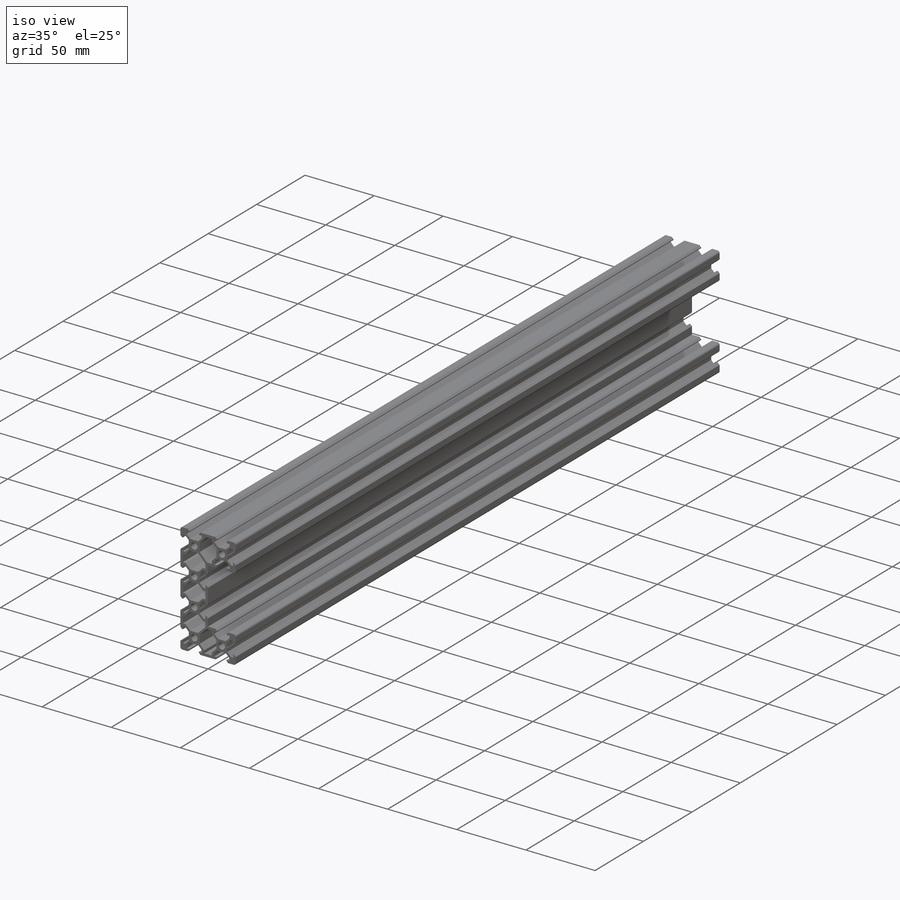
[diagram: iso view]
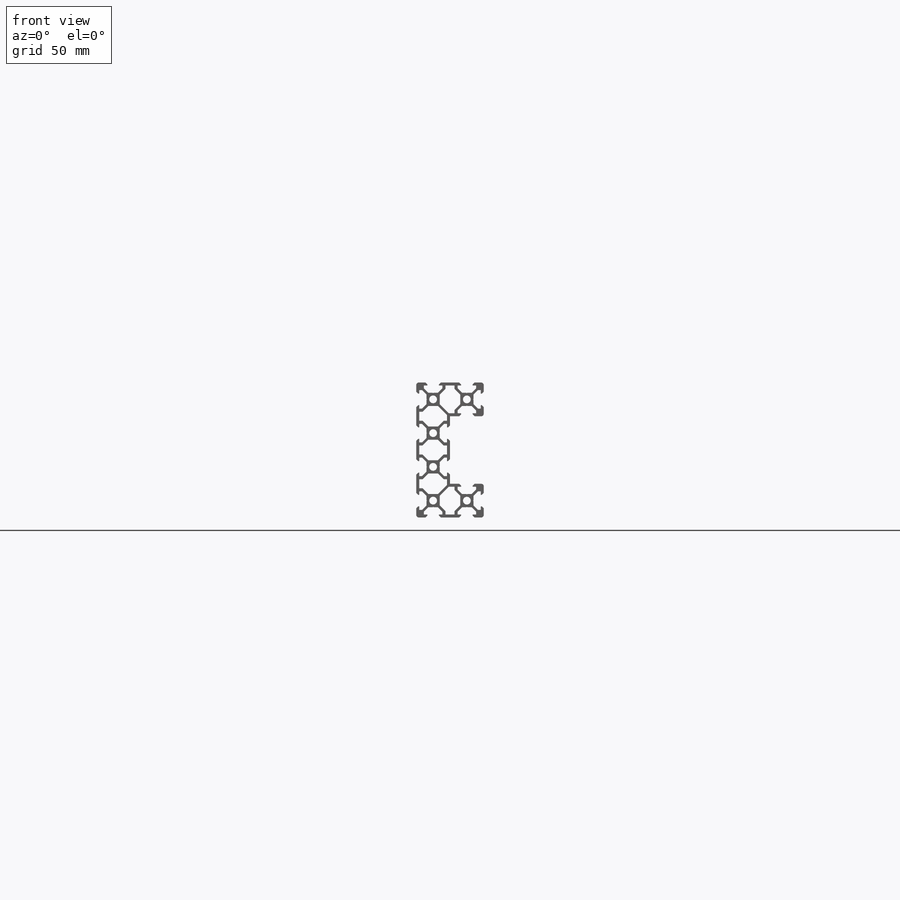
[diagram: front view]
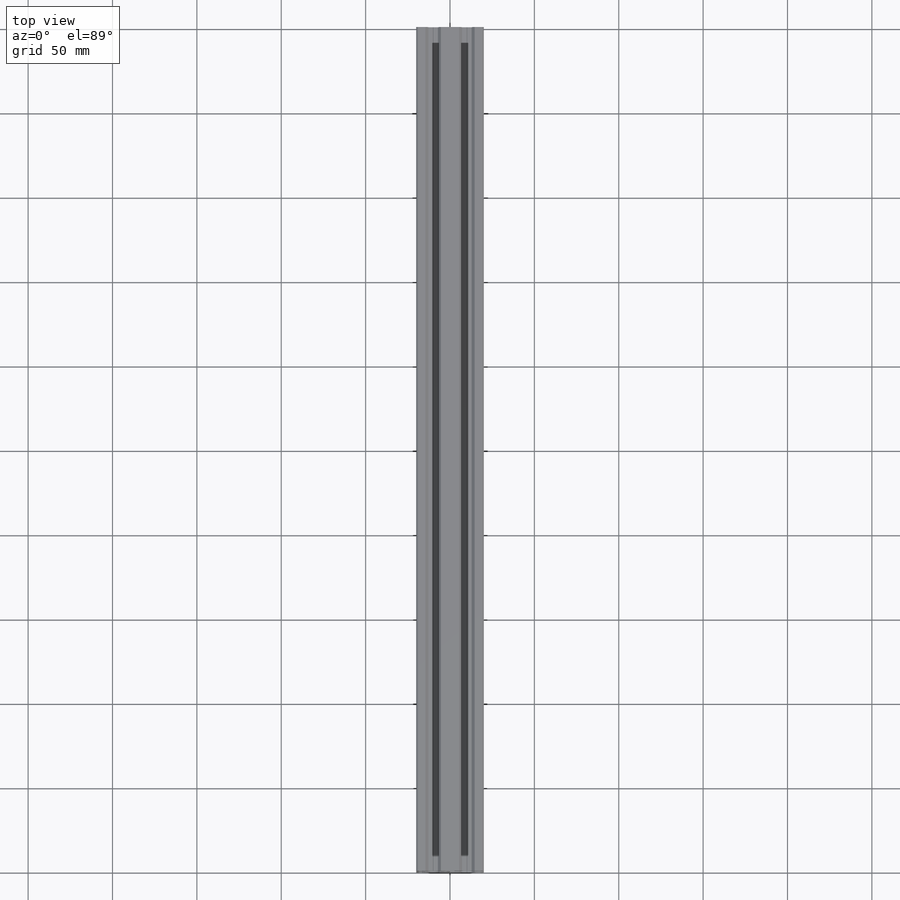
[diagram: top view]
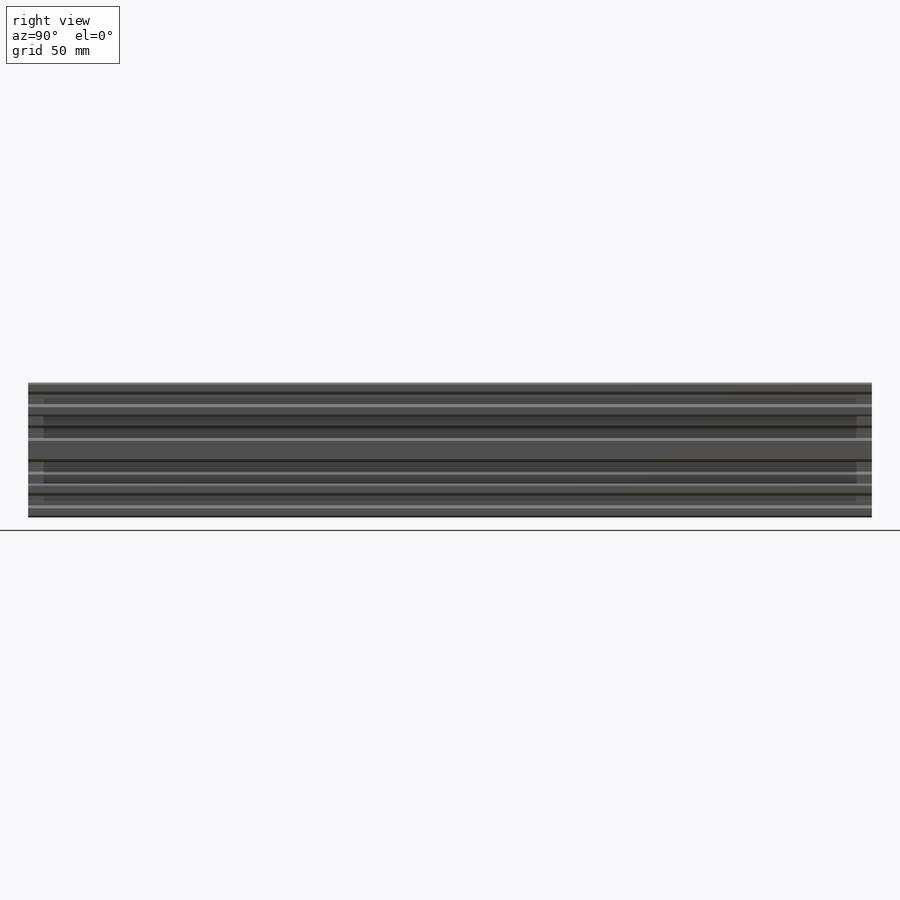
[diagram: right view]
SOLIDWORKS PART (.sldprt)
format: sldprt  version: not decoded by parser v0  size: 566,784 bytes
history: native  units: mm
features: sketch x4, material x1, extrude x1 + 18 further entries (+13 scaffold rows collapsed)
feature tree (37):
  scaffold x13  (default folders/planes/origin — collapsed)
  material  "6061-T6 (SS)"
  sketch  "Sketch1"  dims[D1=10.0mm D2=11.0mm D3=4.3mm D4=1.8mm D5=0.21mm D6=45.0deg D7=9.16mm D8=1.5mm D9=6.79mm]
  "V Slot 2-2"
  "V Slot 2-3"
  "V Slot 2-4"
  "V Slot 2-5"
  "V Slot 2-6"
  "V Slot 2-7"
  "V Slot 2-8"
  "V Slot 2-9"
  "V Slot 2-10"
  "V Slot 2-11"
  "V Slot 2-12"
  "V Slot 2-13"
  "V Slot 2-14"
  "Center Cutout 1-1"
  sketch  "Center Cutout 1"  dims[D1=5.4mm D2=12.2mm D3=8.2mm D4=45.0deg D5=10.0mm D6=1.5mm]
  "Corner Cutout 1-1"
  sketch  "Corner Cutout 1"  dims[D1=5.4mm D2=12.2mm D3=8.2mm D4=45.0deg D5=10.0mm D6=1.5mm]
  "Corner Cutout 1-2"
  "Corner Cutout 2-1"
  sketch  "Corner Cutout 2"  dims[D1=5.4mm D2=12.2mm D3=8.2mm D4=45.0deg D5=10.0mm D6=1.5mm]
  "Corner Cutout 2-2"
  extrude  "Boss-Extrude1"  Depth=500mm
decode coverage: 5 of 5 modeling features carry decoded parameters; 18 rows unclassified (native names shown)
note: suppression state not decoded; provenance and decode notes live in map.json
